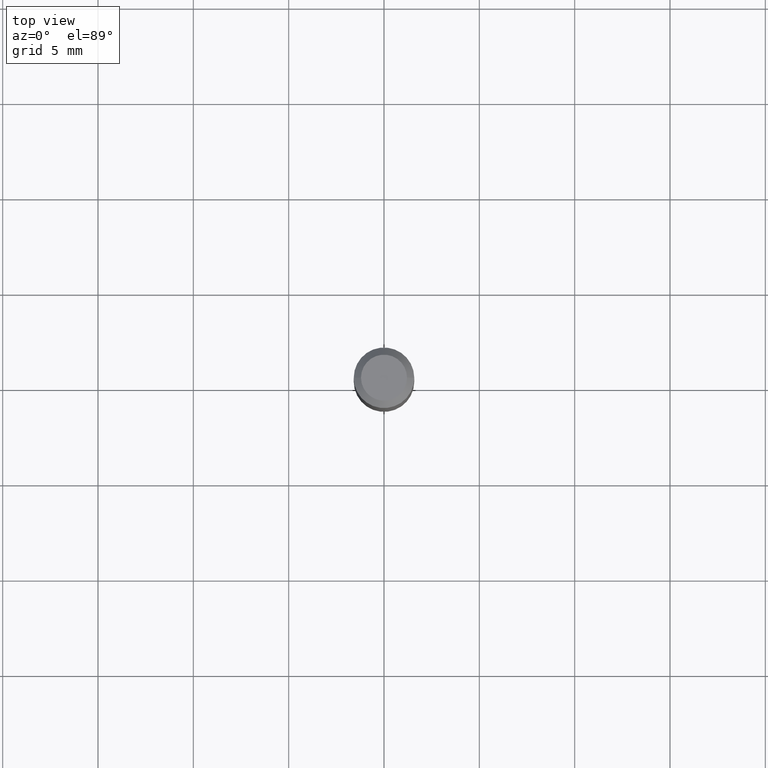
[diagram: clean part render]
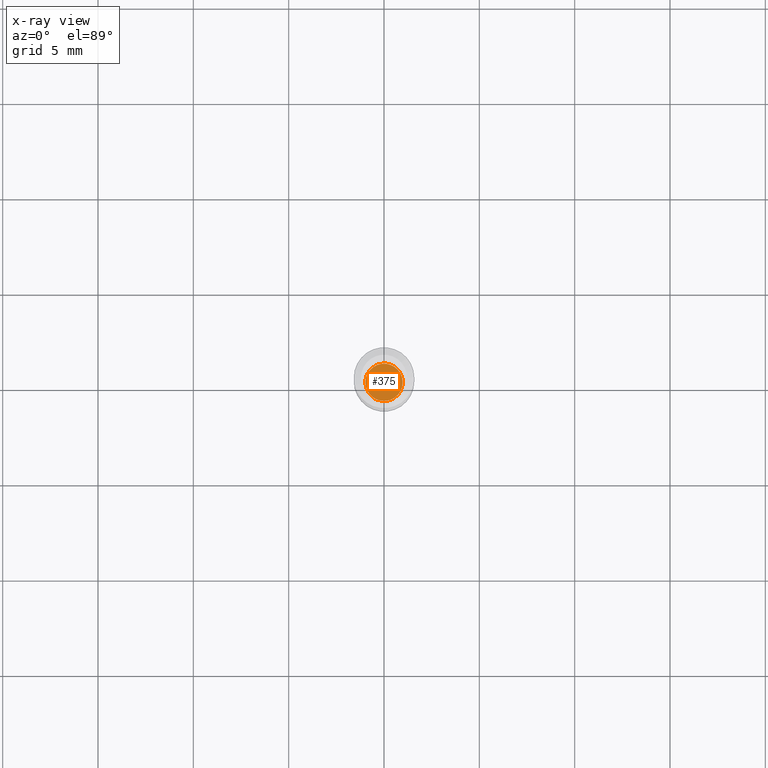
[diagram: x-ray — body ghosted, one internal face saturated and labeled with its STEP entity id]
A machine part, top view, then the same camera in x-ray: the body is ghosted and one INTERNAL B-rep face — a face not visible from any outside direction — is saturated and labeled: STEP entity #375.
In plain terms, the highlighted planar face has unit normal (-0, 0, 1).
Its self-contained STEP definition (entity closure, byte-faithful):
#29 = DIRECTION ( 'NONE',  ( 1.000000000000000000, -6.982962677686265133E-15, 0.000000000000000000 ) ) ;
#46 = ORIENTED_EDGE ( 'NONE', *, *, #151, .F. ) ;
#57 = CARTESIAN_POINT ( 'NONE',  ( -0.03849999999999999256, -1.692987294665784502E-15, -0.5639999999999999458 ) ) ;
#61 = CARTESIAN_POINT ( 'NONE',  ( 0.03849999999999999256, -2.238039538198455139E-15, -0.5639999999999999458 ) ) ;
#78 = DIRECTION ( 'NONE',  ( 1.000000000000000000, -6.982962677686265922E-15, 4.876176775795935793E-29 ) ) ;
#88 = AXIS2_PLACEMENT_3D ( 'NONE', #184, #292, #78 ) ;
#113 = EDGE_LOOP ( 'NONE', ( #46, #335 ) ) ;
#143 = VERTEX_POINT ( 'NONE', #61 ) ;
#151 = EDGE_CURVE ( 'NONE', #143, #249, #284, .T. ) ;
#168 = AXIS2_PLACEMENT_3D ( 'NONE', #422, #204, #275 ) ;
#184 = CARTESIAN_POINT ( 'NONE',  ( 1.379244406688417180E-29, -1.969195475107534123E-15, -0.5640000000000000568 ) ) ;
#204 = DIRECTION ( 'NONE',  ( -2.445468806185136597E-29, 3.491481338843145583E-15, 1.000000000000000000 ) ) ;
#221 = PLANE ( 'NONE',  #88 ) ;
#249 = VERTEX_POINT ( 'NONE', #57 ) ;
#269 = DIRECTION ( 'NONE',  ( -2.445468806185136597E-29, 3.491481338843145583E-15, 1.000000000000000000 ) ) ;
#275 = DIRECTION ( 'NONE',  ( 1.000000000000000000, -6.982962677686265133E-15, 0.000000000000000000 ) ) ;
#284 = CIRCLE ( 'NONE', #168, 0.03849999999999999256 ) ;
#292 = DIRECTION ( 'NONE',  ( -2.438088387897960049E-29, 3.491481338843145188E-15, 1.000000000000000000 ) ) ;
#310 = CARTESIAN_POINT ( 'NONE',  ( 1.379244406688416899E-29, -1.969195475107534123E-15, -0.5639999999999999458 ) ) ;
#331 = FACE_OUTER_BOUND ( 'NONE', #113, .T. ) ;
#335 = ORIENTED_EDGE ( 'NONE', *, *, #462, .F. ) ;
#375 = ADVANCED_FACE ( 'NONE', ( #331 ), #221, .F. ) ;
#408 = AXIS2_PLACEMENT_3D ( 'NONE', #310, #269, #29 ) ;
#422 = CARTESIAN_POINT ( 'NONE',  ( 1.379244406688416899E-29, -1.969195475107534123E-15, -0.5639999999999999458 ) ) ;
#457 = CIRCLE ( 'NONE', #408, 0.03849999999999999256 ) ;
#462 = EDGE_CURVE ( 'NONE', #249, #143, #457, .T. ) ;